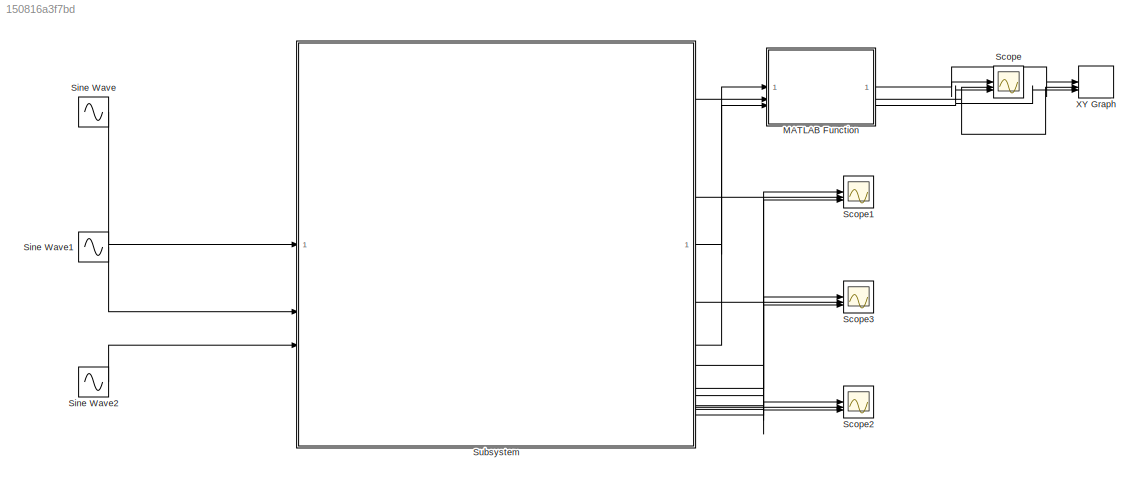
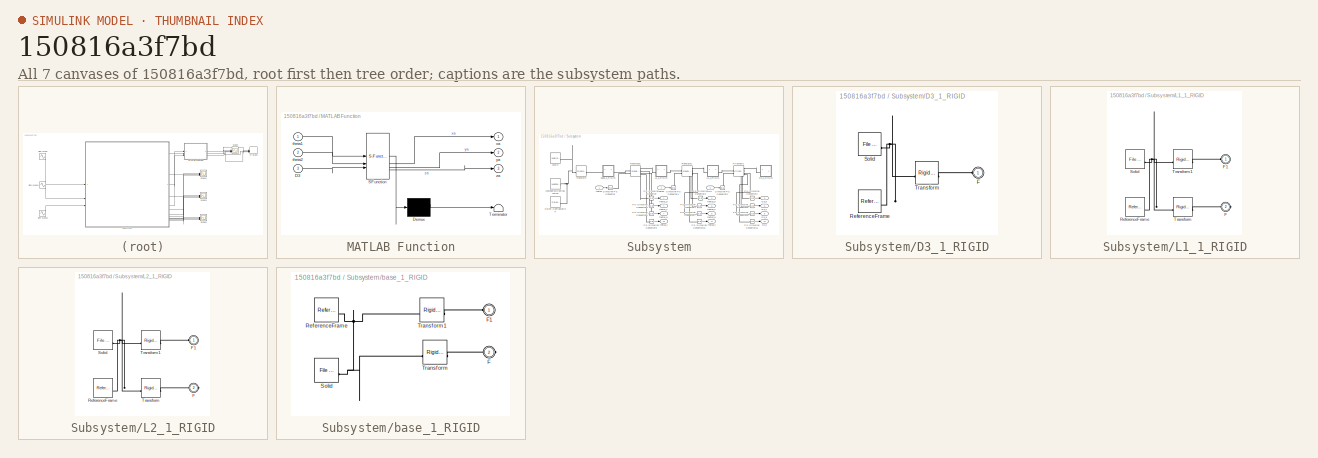
[diagram: thumbnail index - all 7 canvases of the model, root first then tree order]
MODEL slx_150816a3f7bd
KIND model
CONFIG AbsTol = auto
CONFIG EnableMultiTasking = off
CONFIG FixedStep = auto
CONFIG MaxStep = auto
CONFIG MinStep = auto
CONFIG RelTol = 1e-3
CONFIG SampleTimeConstraint = Unconstrained
CONFIG SolverName = VariableStepAuto
CONFIG StartTime = 0.0
CONFIG StopTime = 10.0
WORKSPACE source: external: MATLAB File  (data not in archive)
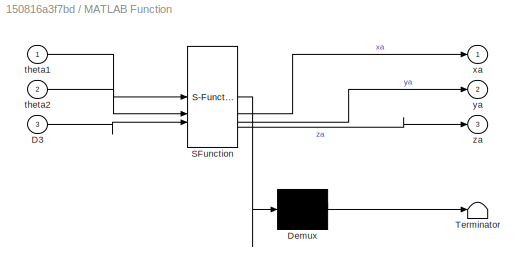
BLOCK [SubSystem] MATLAB Function
  ErrorFcn = Stateflow.Translate.translate
  PermitHierarchicalResolution = ExplicitOnly
  SFBlockType = MATLAB Function
  TreatAsAtomicUnit = on
BLOCK [Demux] MATLAB Function/ Demux 
  Outputs = 1
BLOCK [S-Function] MATLAB Function/ SFunction 
  EnableBusSupport = on
  FunctionName = sf_sfun
  PortCounts = [3 4]
  SFcnIsStateOwnerBlock = off
  SFunctionDeploymentMode = off
  Tag = Stateflow S-Function 2
BLOCK [Terminator] MATLAB Function/ Terminator 
BLOCK [Inport] MATLAB Function/D3
  Port = 3
BLOCK [Inport] MATLAB Function/theta1
BLOCK [Inport] MATLAB Function/theta2
  Port = 2
BLOCK [Outport] MATLAB Function/xa
BLOCK [Outport] MATLAB Function/ya
  Port = 2
BLOCK [Outport] MATLAB Function/za
  Port = 3
BLOCK [Scope] Scope
  Floating = off
  NumInputPorts = 3
  ScopeSpecificationString = Simulink.scopes.TimeScopeBlockCfg('CurrentConfiguration', extmgr.ConfigurationSet(extmgr.Configuration('Core','General UI',true),extmgr.Configuration('Core','Source UI',true),extmgr.Configuration('Sources','WiredSimulink',true),extmgr.Configuration('Visuals','Time Domain',true,'SerializedDisplays',{struct('MinYLimReal','0.03037','MaxYLimReal','1.55218','YLabelReal','','MinYLimMag','0.03037','MaxYL...<+2935ch>
BLOCK [Scope] Scope1
  Floating = off
  NumInputPorts = 3
  ScopeSpecificationString = Simulink.scopes.TimeScopeBlockCfg('CurrentConfiguration', extmgr.ConfigurationSet(extmgr.Configuration('Core','General UI',true),extmgr.Configuration('Core','Source UI',true),extmgr.Configuration('Sources','WiredSimulink',true,'DataLoggingVariableName','ScopeData1'),extmgr.Configuration('Visuals','Time Domain',true,'SerializedDisplays',{struct('MinYLimReal','-1.25042','MaxYLimReal','1.25042','YLab...<+2889ch>
BLOCK [Scope] Scope2
  Floating = off
  NumInputPorts = 3
  ScopeSpecificationString = Simulink.scopes.TimeScopeBlockCfg('CurrentConfiguration', extmgr.ConfigurationSet(extmgr.Configuration('Core','General UI',true),extmgr.Configuration('Core','Source UI',true),extmgr.Configuration('Sources','WiredSimulink',true,'DataLoggingVariableName','ScopeData2'),extmgr.Configuration('Visuals','Time Domain',true,'SerializedDisplays',{struct('MinYLimReal','-1187.66219','MaxYLimReal','9087.45769'...<+2952ch>
BLOCK [Scope] Scope3
  Floating = off
  NumInputPorts = 3
  ScopeSpecificationString = Simulink.scopes.TimeScopeBlockCfg('CurrentConfiguration', extmgr.ConfigurationSet(extmgr.Configuration('Core','General UI',true),extmgr.Configuration('Core','Source UI',true),extmgr.Configuration('Sources','WiredSimulink',true,'DataLoggingVariableName','ScopeData3'),extmgr.Configuration('Visuals','Time Domain',true,'SerializedDisplays',{struct('MinYLimReal','-47.09849','MaxYLimReal','409.69637','Y...<+2939ch>
BLOCK [Sin] Sine Wave
  SampleTime = 0
BLOCK [Sin] Sine Wave1
  SampleTime = 0
BLOCK [Sin] Sine Wave2
  Amplitude = 0.25
  Bias = -0.25
  SampleTime = 0
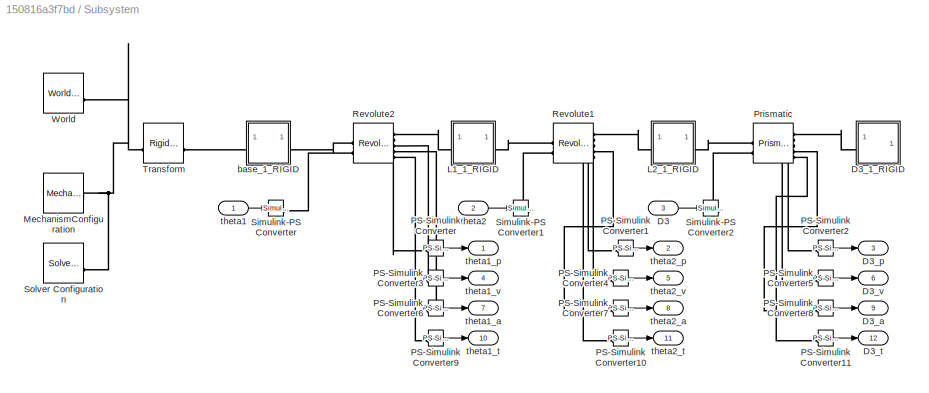
BLOCK [SubSystem] Subsystem
BLOCK [Inport] Subsystem/D3
  Port = 3
BLOCK [SubSystem] Subsystem/D3_1_RIGID
BLOCK [PMIOPort] Subsystem/D3_1_RIGID/F
  Side = Left
BLOCK [Reference] Subsystem/D3_1_RIGID/ReferenceFrame  REF=sm_lib/Frames and
Transforms/Reference
Frame
  SourceBlock = sm_lib/Frames and\nTransforms/Reference\nFrame
  SourceType = Reference\nFrame
BLOCK [Reference] Subsystem/D3_1_RIGID/Solid  REF=sm_lib/Body Elements/File Solid
  SourceBlock = sm_lib/Body Elements/File Solid
  SourceType = File Solid
BLOCK [Reference] Subsystem/D3_1_RIGID/Transform  REF=sm_lib/Frames and
Transforms/Rigid
Transform
  SourceBlock = sm_lib/Frames and\nTransforms/Rigid\nTransform
  SourceType = Rigid\nTransform
BLOCK [Outport] Subsystem/D3_a
  Port = 9
BLOCK [Outport] Subsystem/D3_p
  Port = 3
BLOCK [Outport] Subsystem/D3_t
  Port = 12
BLOCK [Outport] Subsystem/D3_v
  Port = 6
BLOCK [SubSystem] Subsystem/L1_1_RIGID
BLOCK [PMIOPort] Subsystem/L1_1_RIGID/F
  Port = 2
  Side = Right
BLOCK [PMIOPort] Subsystem/L1_1_RIGID/F1
  Side = Left
BLOCK [Reference] Subsystem/L1_1_RIGID/ReferenceFrame  REF=sm_lib/Frames and
Transforms/Reference
Frame
  SourceBlock = sm_lib/Frames and\nTransforms/Reference\nFrame
  SourceType = Reference\nFrame
BLOCK [Reference] Subsystem/L1_1_RIGID/Solid  REF=sm_lib/Body Elements/File Solid
  SourceBlock = sm_lib/Body Elements/File Solid
  SourceType = File Solid
BLOCK [Reference] Subsystem/L1_1_RIGID/Transform  REF=sm_lib/Frames and
Transforms/Rigid
Transform
  SourceBlock = sm_lib/Frames and\nTransforms/Rigid\nTransform
  SourceType = Rigid\nTransform
BLOCK [Reference] Subsystem/L1_1_RIGID/Transform1  REF=sm_lib/Frames and
Transforms/Rigid
Transform
  SourceBlock = sm_lib/Frames and\nTransforms/Rigid\nTransform
  SourceType = Rigid\nTransform
BLOCK [SubSystem] Subsystem/L2_1_RIGID
BLOCK [PMIOPort] Subsystem/L2_1_RIGID/F
  Port = 2
  Side = Right
BLOCK [PMIOPort] Subsystem/L2_1_RIGID/F1
  Side = Left
BLOCK [Reference] Subsystem/L2_1_RIGID/ReferenceFrame  REF=sm_lib/Frames and
Transforms/Reference
Frame
  SourceBlock = sm_lib/Frames and\nTransforms/Reference\nFrame
  SourceType = Reference\nFrame
BLOCK [Reference] Subsystem/L2_1_RIGID/Solid  REF=sm_lib/Body Elements/File Solid
  SourceBlock = sm_lib/Body Elements/File Solid
  SourceType = File Solid
BLOCK [Reference] Subsystem/L2_1_RIGID/Transform  REF=sm_lib/Frames and
Transforms/Rigid
Transform
  SourceBlock = sm_lib/Frames and\nTransforms/Rigid\nTransform
  SourceType = Rigid\nTransform
BLOCK [Reference] Subsystem/L2_1_RIGID/Transform1  REF=sm_lib/Frames and
Transforms/Rigid
Transform
  SourceBlock = sm_lib/Frames and\nTransforms/Rigid\nTransform
  SourceType = Rigid\nTransform
BLOCK [Reference] Subsystem/MechanismConfiguration  REF=sm_lib/Utilities/Mechanism
Configuration
  SourceBlock = sm_lib/Utilities/Mechanism\nConfiguration
  SourceType = Mechanism\nConfiguration
BLOCK [Reference] Subsystem/PS-Simulink Converter  REF=nesl_utility/PS-Simulink
Converter
  SourceBlock = nesl_utility/PS-Simulink\nConverter
  SourceType = PS-Simulink\nConverter
BLOCK [Reference] Subsystem/PS-Simulink Converter1  REF=nesl_utility/PS-Simulink
Converter
  SourceBlock = nesl_utility/PS-Simulink\nConverter
  SourceType = PS-Simulink\nConverter
BLOCK [Reference] Subsystem/PS-Simulink Converter10  REF=nesl_utility/PS-Simulink
Converter
  SourceBlock = nesl_utility/PS-Simulink\nConverter
  SourceType = PS-Simulink\nConverter
BLOCK [Reference] Subsystem/PS-Simulink Converter11  REF=nesl_utility/PS-Simulink
Converter
  SourceBlock = nesl_utility/PS-Simulink\nConverter
  SourceType = PS-Simulink\nConverter
BLOCK [Reference] Subsystem/PS-Simulink Converter2  REF=nesl_utility/PS-Simulink
Converter
  SourceBlock = nesl_utility/PS-Simulink\nConverter
  SourceType = PS-Simulink\nConverter
BLOCK [Reference] Subsystem/PS-Simulink Converter3  REF=nesl_utility/PS-Simulink
Converter
  SourceBlock = nesl_utility/PS-Simulink\nConverter
  SourceType = PS-Simulink\nConverter
BLOCK [Reference] Subsystem/PS-Simulink Converter4  REF=nesl_utility/PS-Simulink
Converter
  SourceBlock = nesl_utility/PS-Simulink\nConverter
  SourceType = PS-Simulink\nConverter
BLOCK [Reference] Subsystem/PS-Simulink Converter5  REF=nesl_utility/PS-Simulink
Converter
  SourceBlock = nesl_utility/PS-Simulink\nConverter
  SourceType = PS-Simulink\nConverter
BLOCK [Reference] Subsystem/PS-Simulink Converter6  REF=nesl_utility/PS-Simulink
Converter
  SourceBlock = nesl_utility/PS-Simulink\nConverter
  SourceType = PS-Simulink\nConverter
BLOCK [Reference] Subsystem/PS-Simulink Converter7  REF=nesl_utility/PS-Simulink
Converter
  SourceBlock = nesl_utility/PS-Simulink\nConverter
  SourceType = PS-Simulink\nConverter
BLOCK [Reference] Subsystem/PS-Simulink Converter8  REF=nesl_utility/PS-Simulink
Converter
  SourceBlock = nesl_utility/PS-Simulink\nConverter
  SourceType = PS-Simulink\nConverter
BLOCK [Reference] Subsystem/PS-Simulink Converter9  REF=nesl_utility/PS-Simulink
Converter
  SourceBlock = nesl_utility/PS-Simulink\nConverter
  SourceType = PS-Simulink\nConverter
BLOCK [Reference] Subsystem/Prismatic  REF=sm_lib/Joints/Prismatic
Joint
  SourceBlock = sm_lib/Joints/Prismatic\nJoint
  SourceType = Prismatic\nJoint
BLOCK [Reference] Subsystem/Revolute1  REF=sm_lib/Joints/Revolute Joint
  SourceBlock = sm_lib/Joints/Revolute Joint
  SourceType = Revolute Joint
BLOCK [Reference] Subsystem/Revolute2  REF=sm_lib/Joints/Revolute Joint
  SourceBlock = sm_lib/Joints/Revolute Joint
  SourceType = Revolute Joint
BLOCK [Reference] Subsystem/Simulink-PS Converter  REF=nesl_utility/Simulink-PS
Converter
  SourceBlock = nesl_utility/Simulink-PS\nConverter
  SourceType = Simulink-PS\nConverter
BLOCK [Reference] Subsystem/Simulink-PS Converter1  REF=nesl_utility/Simulink-PS
Converter
  SourceBlock = nesl_utility/Simulink-PS\nConverter
  SourceType = Simulink-PS\nConverter
BLOCK [Reference] Subsystem/Simulink-PS Converter2  REF=nesl_utility/Simulink-PS
Converter
  SourceBlock = nesl_utility/Simulink-PS\nConverter
  SourceType = Simulink-PS\nConverter
BLOCK [Reference] Subsystem/Solver Configuration  REF=nesl_utility/Solver
Configuration
  SourceBlock = nesl_utility/Solver\nConfiguration
  SourceType = Solver\nConfiguration
BLOCK [Reference] Subsystem/Transform  REF=sm_lib/Frames and
Transforms/Rigid
Transform
  SourceBlock = sm_lib/Frames and\nTransforms/Rigid\nTransform
  SourceType = Rigid\nTransform
BLOCK [Reference] Subsystem/World  REF=sm_lib/Frames and
Transforms/World Frame
  SourceBlock = sm_lib/Frames and\nTransforms/World Frame
  SourceType = World Frame
BLOCK [SubSystem] Subsystem/base_1_RIGID
BLOCK [PMIOPort] Subsystem/base_1_RIGID/F
  Port = 2
  Side = Right
BLOCK [PMIOPort] Subsystem/base_1_RIGID/F1
  Side = Left
BLOCK [Reference] Subsystem/base_1_RIGID/ReferenceFrame  REF=sm_lib/Frames and
Transforms/Reference
Frame
  SourceBlock = sm_lib/Frames and\nTransforms/Reference\nFrame
  SourceType = Reference\nFrame
BLOCK [Reference] Subsystem/base_1_RIGID/Solid  REF=sm_lib/Body Elements/File Solid
  SourceBlock = sm_lib/Body Elements/File Solid
  SourceType = File Solid
BLOCK [Reference] Subsystem/base_1_RIGID/Transform  REF=sm_lib/Frames and
Transforms/Rigid
Transform
  SourceBlock = sm_lib/Frames and\nTransforms/Rigid\nTransform
  SourceType = Rigid\nTransform
BLOCK [Reference] Subsystem/base_1_RIGID/Transform1  REF=sm_lib/Frames and
Transforms/Rigid
Transform
  SourceBlock = sm_lib/Frames and\nTransforms/Rigid\nTransform
  SourceType = Rigid\nTransform
BLOCK [Inport] Subsystem/theta1
BLOCK [Outport] Subsystem/theta1_a
  Port = 7
BLOCK [Outport] Subsystem/theta1_p
BLOCK [Outport] Subsystem/theta1_t
  Port = 10
BLOCK [Outport] Subsystem/theta1_v
  Port = 4
BLOCK [Inport] Subsystem/theta2
  Port = 2
BLOCK [Outport] Subsystem/theta2_a
  Port = 8
BLOCK [Outport] Subsystem/theta2_p
  Port = 2
BLOCK [Outport] Subsystem/theta2_t
  Port = 11
BLOCK [Outport] Subsystem/theta2_v
  Port = 5
BLOCK [Record] XY Graph
  CompatibilityTag = XY
  FileSettingsInternal = {"entries":[{"content":{"excelSettings":{"content":{},"type":"Streamout.ExcelSettings"}},"type":"Streamout.FileSettingStorage","uuid":""}],"packageUris":["http:\/\/schema.mathworks.com\/mf0\/streamout_blocks\/R2020a"],"version":"1.0"}
  Layout = [1 1]
  SignalsInternal = {"entries":[{"content":{"signals":[{"content":{"blockPath":[],"dimensions":[1],"domain":"","lineColor":"#a2142f","plots":[ 1 ],"port":1,"sid":[""],"signalID":1,"signalName":"MATLAB Function:1"},"type":"RecordBlkView.Signal","uuid":""},{"content":{"blockPath":[],"dimensions":[1],"domain":"","lineColor":"#139fff","plots":[ 1 ],"port":2,"sid":[""],"signalID":2,"signalName":"MATLAB Function:2"},"type"...<+380ch>
  VisualizationBindings = {"xyplotplugin":{"info":[{"series":[],"subplotID":1}]}}
NET MATLAB Function:1 -> Scope:1, XY Graph:1
NET MATLAB Function:2 -> Scope:2, XY Graph:2
NET MATLAB Function:3 -> Scope:3, XY Graph:3
LINE Sine Wave1:1 -> Subsystem:2
LINE Sine Wave2:1 -> Subsystem:3
LINE Sine Wave:1 -> Subsystem:1
LINE Subsystem/D3:1 -> Subsystem/Simulink-PS Converter2:1
LINE Subsystem/PS-Simulink Converter10:1 -> Subsystem/theta2_t:1
LINE Subsystem/PS-Simulink Converter11:1 -> Subsystem/D3_t:1
LINE Subsystem/PS-Simulink Converter1:1 -> Subsystem/theta2_p:1
LINE Subsystem/PS-Simulink Converter2:1 -> Subsystem/D3_p:1
LINE Subsystem/PS-Simulink Converter3:1 -> Subsystem/theta1_v:1
LINE Subsystem/PS-Simulink Converter4:1 -> Subsystem/theta2_v:1
LINE Subsystem/PS-Simulink Converter5:1 -> Subsystem/D3_v:1
LINE Subsystem/PS-Simulink Converter6:1 -> Subsystem/theta1_a:1
LINE Subsystem/PS-Simulink Converter7:1 -> Subsystem/theta2_a:1
LINE Subsystem/PS-Simulink Converter8:1 -> Subsystem/D3_a:1
LINE Subsystem/PS-Simulink Converter9:1 -> Subsystem/theta1_t:1
LINE Subsystem/PS-Simulink Converter:1 -> Subsystem/theta1_p:1
LINE Subsystem/theta1:1 -> Subsystem/Simulink-PS Converter:1
LINE Subsystem/theta2:1 -> Subsystem/Simulink-PS Converter1:1
LINE Subsystem:1 -> MATLAB Function:1
LINE Subsystem:10 -> Scope2:1
LINE Subsystem:11 -> Scope2:2
LINE Subsystem:12 -> Scope2:3
LINE Subsystem:2 -> MATLAB Function:2
LINE Subsystem:3 -> MATLAB Function:3
LINE Subsystem:4 -> Scope1:1
LINE Subsystem:5 -> Scope1:2
LINE Subsystem:6 -> Scope1:3
LINE Subsystem:7 -> Scope3:1
LINE Subsystem:8 -> Scope3:2
LINE Subsystem:9 -> Scope3:3
PLINE Subsystem/D3_1_RIGID/F:RConn1 -- Subsystem/D3_1_RIGID/Transform:RConn1
PNET net1: Subsystem/D3_1_RIGID/ReferenceFrame:RConn1 -- Subsystem/D3_1_RIGID/Solid:RConn1 -- Subsystem/D3_1_RIGID/Transform:LConn1
PLINE Subsystem/D3_1_RIGID:LConn1 -- Subsystem/Prismatic:RConn1
PLINE Subsystem/L1_1_RIGID/F1:RConn1 -- Subsystem/L1_1_RIGID/Transform1:RConn1
PLINE Subsystem/L1_1_RIGID/F:RConn1 -- Subsystem/L1_1_RIGID/Transform:RConn1
PNET net2: Subsystem/L1_1_RIGID/ReferenceFrame:RConn1 -- Subsystem/L1_1_RIGID/Solid:RConn1 -- Subsystem/L1_1_RIGID/Transform1:LConn1 -- Subsystem/L1_1_RIGID/Transform:LConn1
PLINE Subsystem/L1_1_RIGID:LConn1 -- Subsystem/Revolute2:RConn1
PLINE Subsystem/L1_1_RIGID:RConn1 -- Subsystem/Revolute1:LConn1
PLINE Subsystem/L2_1_RIGID/F1:RConn1 -- Subsystem/L2_1_RIGID/Transform1:RConn1
PLINE Subsystem/L2_1_RIGID/F:RConn1 -- Subsystem/L2_1_RIGID/Transform:RConn1
PNET net3: Subsystem/L2_1_RIGID/ReferenceFrame:RConn1 -- Subsystem/L2_1_RIGID/Solid:RConn1 -- Subsystem/L2_1_RIGID/Transform1:LConn1 -- Subsystem/L2_1_RIGID/Transform:LConn1
PLINE Subsystem/L2_1_RIGID:LConn1 -- Subsystem/Revolute1:RConn1
PLINE Subsystem/L2_1_RIGID:RConn1 -- Subsystem/Prismatic:LConn1
PNET net4: Subsystem/MechanismConfiguration:RConn1 -- Subsystem/Solver Configuration:RConn1 -- Subsystem/Transform:LConn1 -- Subsystem/World:RConn1
PLINE Subsystem/PS-Simulink Converter10:LConn1 -- Subsystem/Revolute1:RConn5
PLINE Subsystem/PS-Simulink Converter11:LConn1 -- Subsystem/Prismatic:RConn5
PLINE Subsystem/PS-Simulink Converter1:LConn1 -- Subsystem/Revolute1:RConn2
PLINE Subsystem/PS-Simulink Converter2:LConn1 -- Subsystem/Prismatic:RConn2
PLINE Subsystem/PS-Simulink Converter3:LConn1 -- Subsystem/Revolute2:RConn3
PLINE Subsystem/PS-Simulink Converter4:LConn1 -- Subsystem/Revolute1:RConn3
PLINE Subsystem/PS-Simulink Converter5:LConn1 -- Subsystem/Prismatic:RConn3
PLINE Subsystem/PS-Simulink Converter6:LConn1 -- Subsystem/Revolute2:RConn4
PLINE Subsystem/PS-Simulink Converter7:LConn1 -- Subsystem/Revolute1:RConn4
PLINE Subsystem/PS-Simulink Converter8:LConn1 -- Subsystem/Prismatic:RConn4
PLINE Subsystem/PS-Simulink Converter9:LConn1 -- Subsystem/Revolute2:RConn5
PLINE Subsystem/PS-Simulink Converter:LConn1 -- Subsystem/Revolute2:RConn2
PLINE Subsystem/Prismatic:LConn2 -- Subsystem/Simulink-PS Converter2:RConn1
PLINE Subsystem/Revolute1:LConn2 -- Subsystem/Simulink-PS Converter1:RConn1
PLINE Subsystem/Revolute2:LConn1 -- Subsystem/base_1_RIGID:RConn1
PLINE Subsystem/Revolute2:LConn2 -- Subsystem/Simulink-PS Converter:RConn1
PLINE Subsystem/Transform:RConn1 -- Subsystem/base_1_RIGID:LConn1
PLINE Subsystem/base_1_RIGID/F1:RConn1 -- Subsystem/base_1_RIGID/Transform1:RConn1
PLINE Subsystem/base_1_RIGID/F:RConn1 -- Subsystem/base_1_RIGID/Transform:RConn1
PNET net5: Subsystem/base_1_RIGID/ReferenceFrame:RConn1 -- Subsystem/base_1_RIGID/Solid:RConn1 -- Subsystem/base_1_RIGID/Transform1:LConn1 -- Subsystem/base_1_RIGID/Transform:LConn1
note: NET lines group one-source signal fan-out (src -> all destinations, sorted); 1:1 wires keep LINE; PNET lines group multi-terminal physical nets as a canonical sorted terminal list (undirected conserving connections); 2-terminal nets keep the pairwise PLINE form
CHART MATLAB Function states=1 transitions=1
  STATE_LABEL 'eML_blk_kernel()'
  STATE_LABEL 'SCRIPT:\nfunction [xa, ya, za] = Forward_Kinematics(theta1, theta2, D3)\nl1=0.8;\nl2=0.6;\n\nxa=l1*cos(theta1)+l2*cos(theta1+theta2);\nya=l1*sin(theta1)+l2*sin(theta1+theta2);\nza=D3;\n'
CHART  states=0 transitions=0
